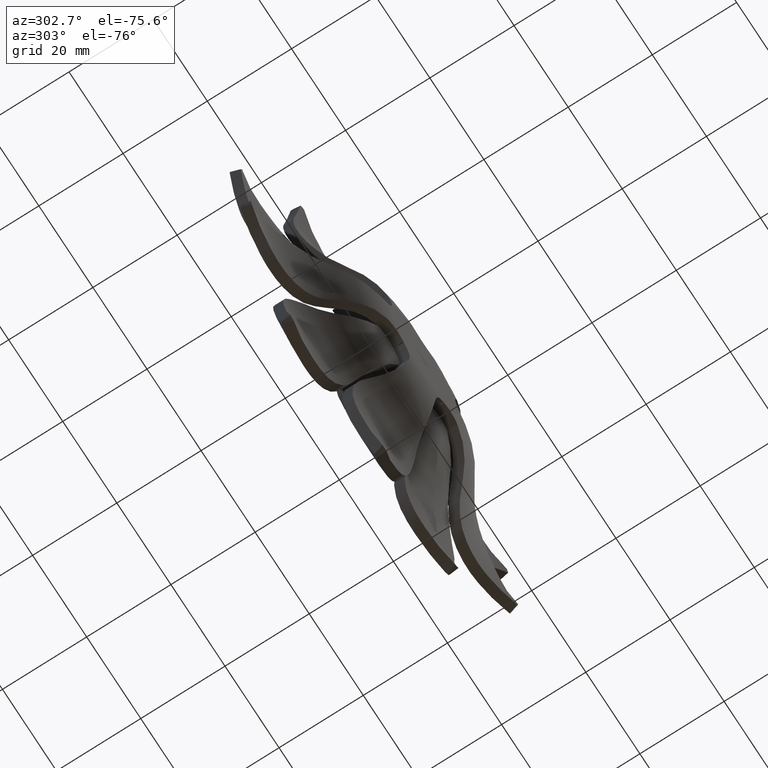
[diagram: clean part render]
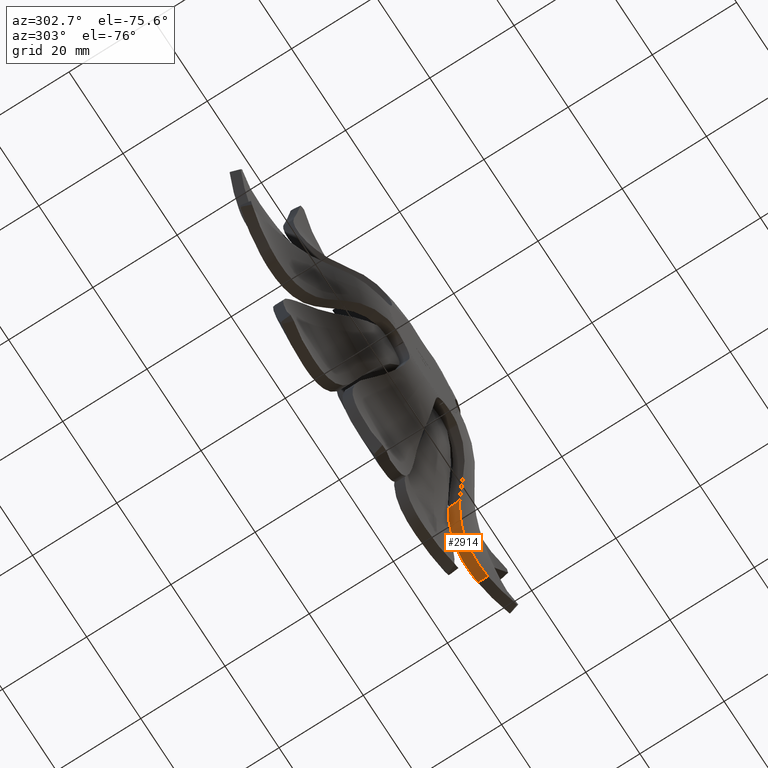
[diagram: same view with one face highlighted and labeled with its STEP entity id]
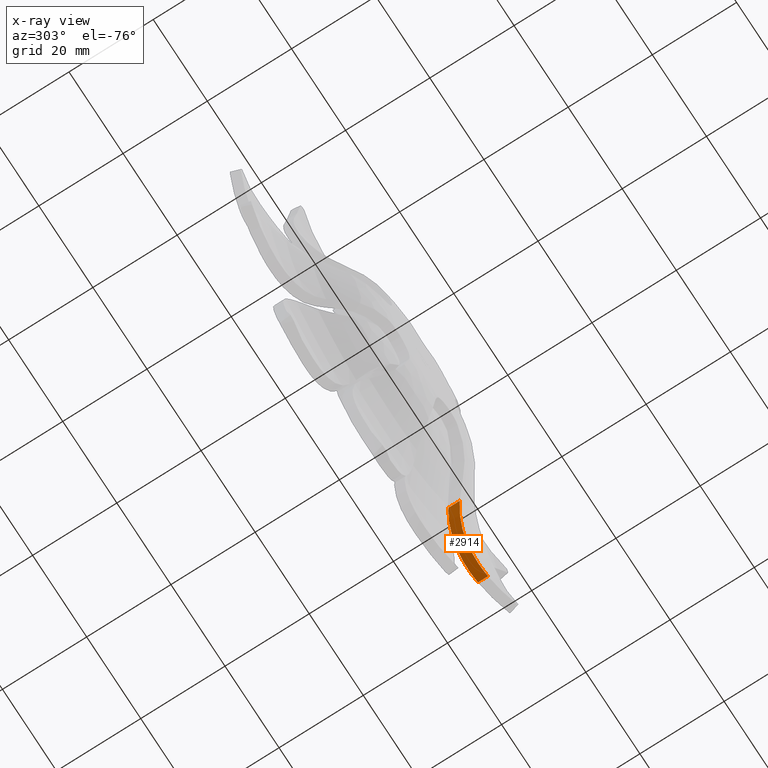
[diagram: x-ray of the same camera — body ghosted, the highlighted face saturated]
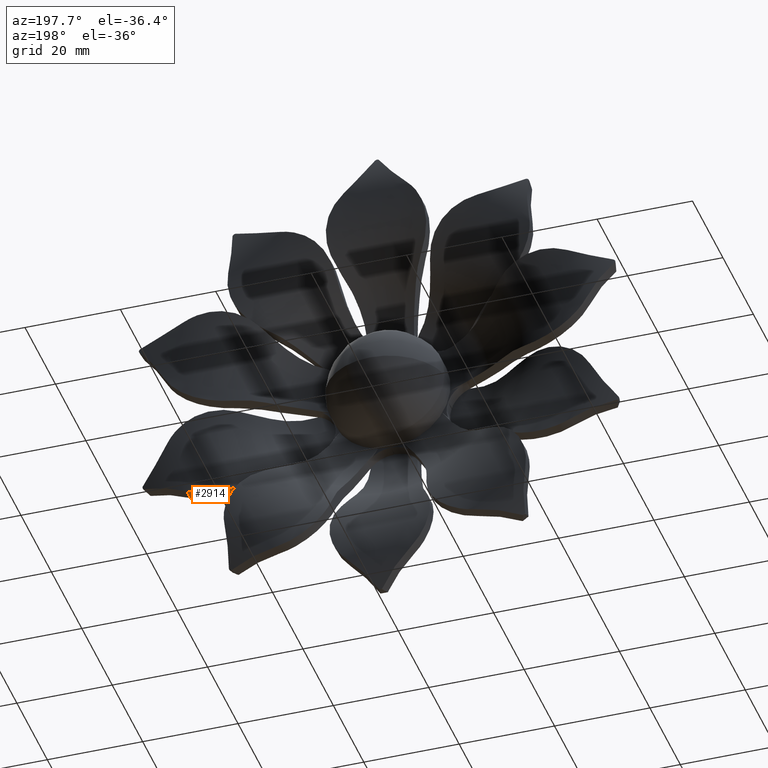
[diagram: same view with one face highlighted and labeled with its STEP entity id]
A machine part, auxiliary view. The second image highlights one B-rep face of the part: STEP entity #2914.
The next image is the same camera in x-ray: the body ghosted, the highlighted face saturated — about 0% of this face is hidden behind the body in this view.
A second angle (auxiliary view) of the same face is appended — the face is thin or edge-on in the first view.
In plain terms, the highlighted cylindrical surface (partial cylindrical patch) has radius 13 mm, axis along (0, -1, 0).
Its self-contained STEP definition (entity closure, byte-faithful):
#239 = CARTESIAN_POINT ( 'NONE',  ( 35.36741898368354242, 10.54082407916816067, -21.50094818930367424 ) ) ;
#432 = CARTESIAN_POINT ( 'NONE',  ( 36.84361723825667667, 12.99654348786471836, -21.29586507458773781 ) ) ;
#511 = EDGE_CURVE ( 'NONE', #13452, #17378, #12001, .T. ) ;
#1702 = DIRECTION ( 'NONE',  ( 0.000000000000000000, -1.000000000000000000, 0.000000000000000000 ) ) ;
#1743 = CARTESIAN_POINT ( 'NONE',  ( 32.11868741155505802, 10.19512747062287517, -21.33986891342368963 ) ) ;
#2914 = ADVANCED_FACE ( 'NONE', ( #11264 ), #7272, .T. ) ;
#2958 = CARTESIAN_POINT ( 'NONE',  ( 32.47859395630258916, 10.25042130295759968, -21.39647637623030718 ) ) ;
#3224 = CARTESIAN_POINT ( 'NONE',  ( 37.53568252426889984, 10.60378634167893352, -21.13909919038129459 ) ) ;
#3344 = CARTESIAN_POINT ( 'NONE',  ( 33.24005832115206260, 12.77193501304498291, -21.48249112029801111 ) ) ;
#3715 = CARTESIAN_POINT ( 'NONE',  ( 26.69935051219744793, 11.12306059332351005, -19.07636505485002232 ) ) ;
#3870 = CARTESIAN_POINT ( 'NONE',  ( 40.24825612408375264, 12.99999999999999467, -20.09165568053647988 ) ) ;
#4430 = ORIENTED_EDGE ( 'NONE', *, *, #511, .F. ) ;
#4878 = CARTESIAN_POINT ( 'NONE',  ( 35.39643474333137618, 12.94694629036193056, -21.49826974005816638 ) ) ;
#4937 = VECTOR ( 'NONE', #8364, 1000.000000000000000 ) ;
#5311 = CARTESIAN_POINT ( 'NONE',  ( 25.16514841794485946, 10.29326189422972959, -17.77639397577137004 ) ) ;
#5602 = CARTESIAN_POINT ( 'NONE',  ( 25.63493255493968448, 7.944689331777952113, -18.21886920131998266 ) ) ;
#5978 = CARTESIAN_POINT ( 'NONE',  ( 33.55743298784621942, 10.38816102395477614, -21.50506270097843142 ) ) ;
#6113 = CARTESIAN_POINT ( 'NONE',  ( 40.24825612408375264, 10.54755544722352489, -20.09165568053647988 ) ) ;
#7272 = CYLINDRICAL_SURFACE ( 'NONE', #13504, 13.00000000000000000 ) ;
#7370 = CARTESIAN_POINT ( 'NONE',  ( 39.59337778606006708, 10.57447409606210087, -20.42726074718046192 ) ) ;
#7434 = CARTESIAN_POINT ( 'NONE',  ( 33.19715262951351065, 10.34679142028313237, -21.47890048490815929 ) ) ;
#7952 = CARTESIAN_POINT ( 'NONE',  ( 32.16706088263694596, 12.63502327597079500, -21.34805024592926870 ) ) ;
#8031 = VECTOR ( 'NONE', #1702, 1000.000000000000000 ) ;
#8079 = CARTESIAN_POINT ( 'NONE',  ( 33.59835011949489569, 12.80927719628067329, -21.50733808936064051 ) ) ;
#8144 = CARTESIAN_POINT ( 'NONE',  ( 29.43454001108792184, 12.08242635307947843, -20.57485159140811959 ) ) ;
#8339 = CARTESIAN_POINT ( 'NONE',  ( 24.71972684456688540, 9.979862964827066918, -17.28862745680194379 ) ) ;
#8364 = DIRECTION ( 'NONE',  ( 0.000000000000000000, -1.000000000000000000, 0.000000000000000000 ) ) ;
#8381 = DIRECTION ( 'NONE',  ( 0.000000000000000000, -1.000000000000000000, 0.000000000000000000 ) ) ;
#8561 = CARTESIAN_POINT ( 'NONE',  ( 25.15836344896589338, 7.626081830463959932, -17.76896397934105565 ) ) ;
#8934 = CARTESIAN_POINT ( 'NONE',  ( 30.37181576188845256, 9.856958449283798274, -20.92838956618753343 ) ) ;
#9072 = CARTESIAN_POINT ( 'NONE',  ( 36.82558018925393384, 10.59598006626009337, -21.29972366666553896 ) ) ;
#9566 = CARTESIAN_POINT ( 'NONE',  ( 34.31935681312121744, 12.99999999999999467, -8.522379430032824388 ) ) ;
#9751 = DIRECTION ( 'NONE',  ( 0.9510565162951500895, 0.000000000000000000, -0.3090169943749581094 ) ) ;
#9776 = CARTESIAN_POINT ( 'NONE',  ( 30.42204390096341982, 12.32872455108517684, -20.94433715115479089 ) ) ;
#10159 = ORIENTED_EDGE ( 'NONE', *, *, #18092, .T. ) ;
#10395 = CARTESIAN_POINT ( 'NONE',  ( 28.42832010772321283, 9.285151388182578458, -20.13176457961731813 ) ) ;
#10587 = CARTESIAN_POINT ( 'NONE',  ( 38.91958160501855701, 10.59307741154659688, -20.70286794467664748 ) ) ;
#11031 = CARTESIAN_POINT ( 'NONE',  ( 39.59743105783473993, 12.97636273985948563, -20.42518356968798088 ) ) ;
#11108 = EDGE_CURVE ( 'NONE', #12770, #13452, #13365, .T. ) ;
#11159 = CARTESIAN_POINT ( 'NONE',  ( 28.16572418274049383, 11.69738885284551522, -19.97897200637895665 ) ) ;
#11163 = ORIENTED_EDGE ( 'NONE', *, *, #14952, .F. ) ;
#11264 = FACE_OUTER_BOUND ( 'NONE', #15923, .T. ) ;
#12001 = LINE ( 'NONE', #14968, #8031 ) ;
#12182 = CARTESIAN_POINT ( 'NONE',  ( 40.24825612408375264, 10.54755544722352489, -20.09165568053647988 ) ) ;
#12539 = CARTESIAN_POINT ( 'NONE',  ( 37.55157423244686044, 13.00351128784822485, -21.13481441378599612 ) ) ;
#12770 = VERTEX_POINT ( 'NONE', #19287 ) ;
#12821 = VERTEX_POINT ( 'NONE', #12182 ) ;
#12854 = CARTESIAN_POINT ( 'NONE',  ( 27.26100897382652022, 11.36730048912469115, -19.46141767934088307 ) ) ;
#13365 = B_SPLINE_CURVE_WITH_KNOTS ( 'NONE', 3,
 ( #15460, #11031, #15515, #12539, #432, #4878, #15326, #8079, #3344, #18325, #7952, #18389, #9776, #8144, #18641, #14291, #11159, #12854, #3715, #18517, #5311, #8339 ),
 .UNSPECIFIED., .F., .F.,
 ( 4, 2, 2, 2, 2, 2, 2, 2, 2, 2, 4 ),
 ( 2.784498731653274619E-07, 0.002165197269699680772, 0.004330116089526195658, 0.006495034909352710543, 0.007577494319265968420, 0.008659953729179227164, 0.01082487254900572210, 0.01190733195891897390, 0.01298979136883222571, 0.01515471018865872585, 0.01731962900848522599 ),
 .UNSPECIFIED. ) ;
#13452 = VERTEX_POINT ( 'NONE', #17420 ) ;
#13490 = CARTESIAN_POINT ( 'NONE',  ( 24.71972684456688540, 7.283183596901887213, -17.28862745680194379 ) ) ;
#13504 = AXIS2_PLACEMENT_3D ( 'NONE', #9566, #8381, #9751 ) ;
#13513 = CARTESIAN_POINT ( 'NONE',  ( 31.05412738984551879, 10.00813549346050380, -21.12643459893281417 ) ) ;
#14291 = CARTESIAN_POINT ( 'NONE',  ( 28.47780531925030800, 11.80128610583477666, -20.14127786604778336 ) ) ;
#14711 = CARTESIAN_POINT ( 'NONE',  ( 26.66837883300696888, 8.531601322708292301, -19.05346078612229377 ) ) ;
#14826 = CARTESIAN_POINT ( 'NONE',  ( 24.71972684456688540, 7.283183596901887213, -17.28862745680194379 ) ) ;
#14947 = CARTESIAN_POINT ( 'NONE',  ( 29.05964542827551611, 9.495765019087334835, -20.43151894544979896 ) ) ;
#14952 = EDGE_CURVE ( 'NONE', #17378, #12821, #15930, .T. ) ;
#14968 = CARTESIAN_POINT ( 'NONE',  ( 24.71972684456688540, 12.99999999999999467, -17.28862745680194379 ) ) ;
#15326 = CARTESIAN_POINT ( 'NONE',  ( 34.67543794295210802, 12.90493289478102490, -21.53734060461207633 ) ) ;
#15460 = CARTESIAN_POINT ( 'NONE',  ( 40.24825612408375264, 12.95175806389130280, -20.09165568053647988 ) ) ;
#15515 = CARTESIAN_POINT ( 'NONE',  ( 38.92764191168414811, 12.99343038381864446, -20.69958987066970479 ) ) ;
#15923 = EDGE_LOOP ( 'NONE', ( #4430, #18132, #10159, #11163 ) ) ;
#15930 = B_SPLINE_CURVE_WITH_KNOTS ( 'NONE', 3,
 ( #14826, #8561, #5602, #14711, #18066, #10395, #14947, #8934, #13513, #1743, #2958, #7434, #5978, #17801, #239, #9072, #3224, #10587, #7370, #6113 ),
 .UNSPECIFIED., .F., .F.,
 ( 4, 2, 2, 2, 2, 2, 2, 2, 2, 4 ),
 ( 2.567590521668244953E-07, 0.002178589757468182668, 0.004356922755884199035, 0.006535255754300214534, 0.008713588752716230901, 0.009802755251924229543, 0.01089192175113222645, 0.01307025474954824108, 0.01524858774796425918, 0.01742692074638027208 ),
 .UNSPECIFIED. ) ;
#17378 = VERTEX_POINT ( 'NONE', #13490 ) ;
#17420 = CARTESIAN_POINT ( 'NONE',  ( 24.71972684456688540, 9.979862964827066918, -17.28862745680194379 ) ) ;
#17801 = CARTESIAN_POINT ( 'NONE',  ( 34.64104671698813576, 10.49417826021142375, -21.53848049458363434 ) ) ;
#18066 = CARTESIAN_POINT ( 'NONE',  ( 27.22519568694177039, 8.799946153836739171, -19.43819433005489827 ) ) ;
#18092 = EDGE_CURVE ( 'NONE', #12770, #12821, #18950, .T. ) ;
#18132 = ORIENTED_EDGE ( 'NONE', *, *, #11108, .F. ) ;
#18325 = CARTESIAN_POINT ( 'NONE',  ( 32.52507620476172434, 12.68491498965491182, -21.40298257419421901 ) ) ;
#18389 = CARTESIAN_POINT ( 'NONE',  ( 31.10483367277436173, 12.46580107294452411, -21.13933942761713425 ) ) ;
#18517 = CARTESIAN_POINT ( 'NONE',  ( 25.65228006849924469, 10.58672210969398897, -18.23489142733809842 ) ) ;
#18641 = CARTESIAN_POINT ( 'NONE',  ( 29.11151223288966605, 11.99353387673255078, -20.43879162289227125 ) ) ;
#18950 = LINE ( 'NONE', #3870, #4937 ) ;
#19287 = CARTESIAN_POINT ( 'NONE',  ( 40.24825612408375264, 12.95175806389130280, -20.09165568053647988 ) ) ;